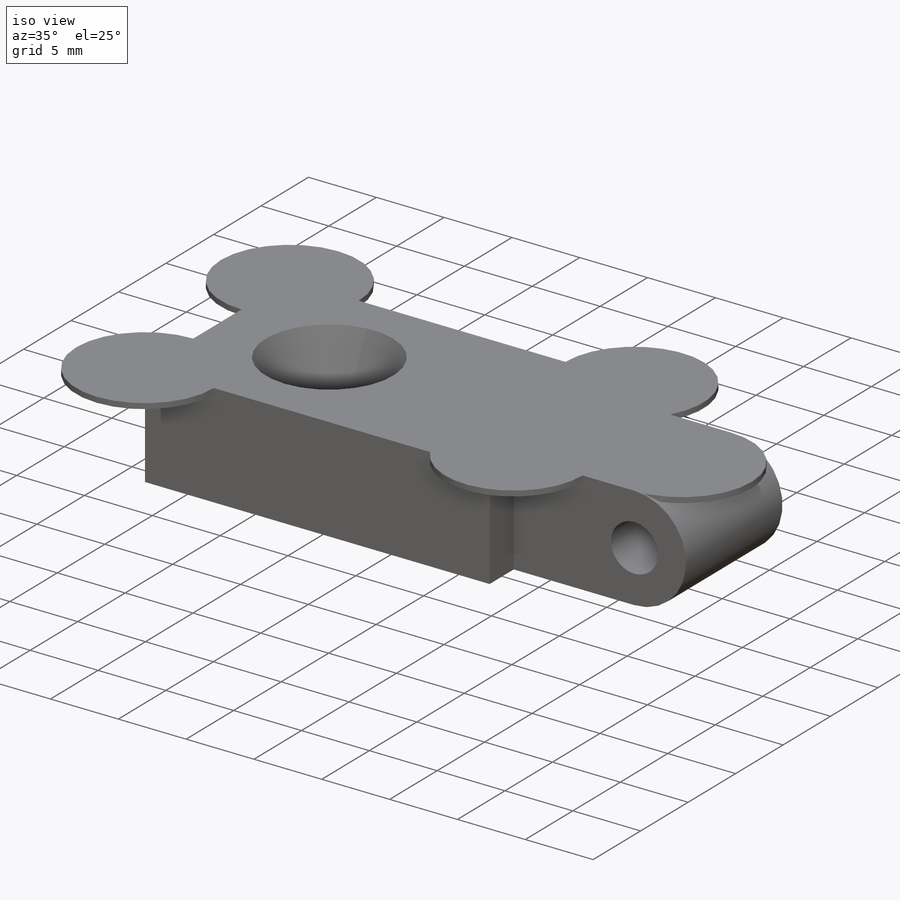
[diagram: iso view]
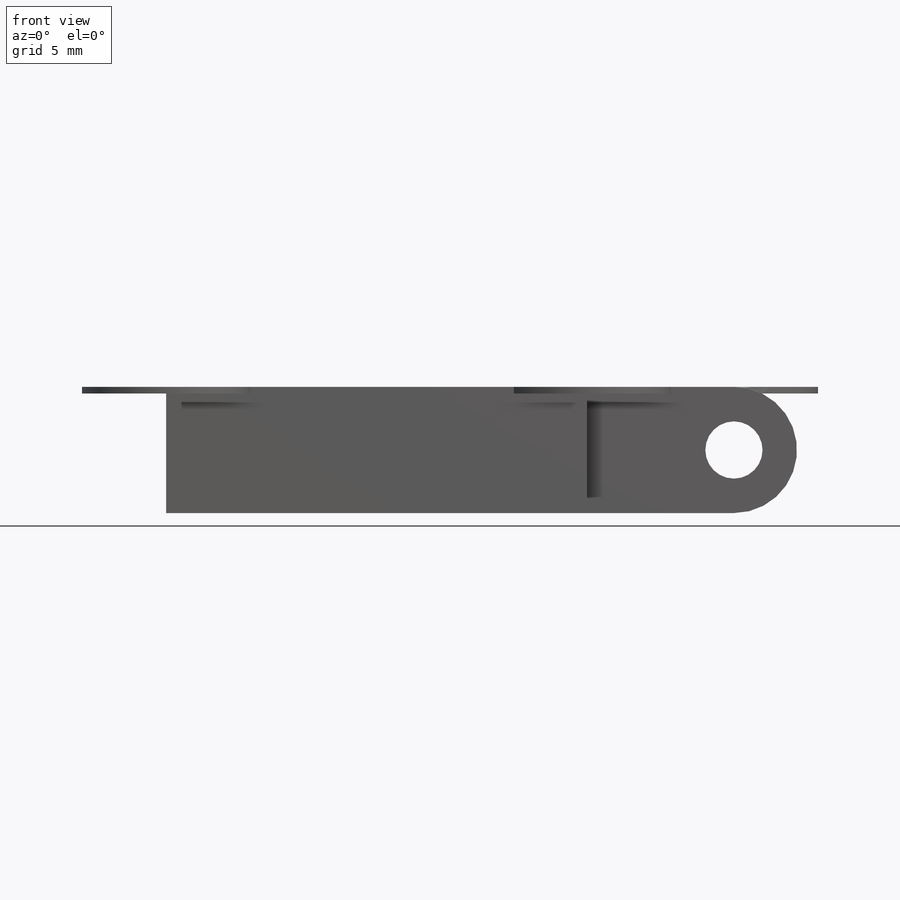
[diagram: front view]
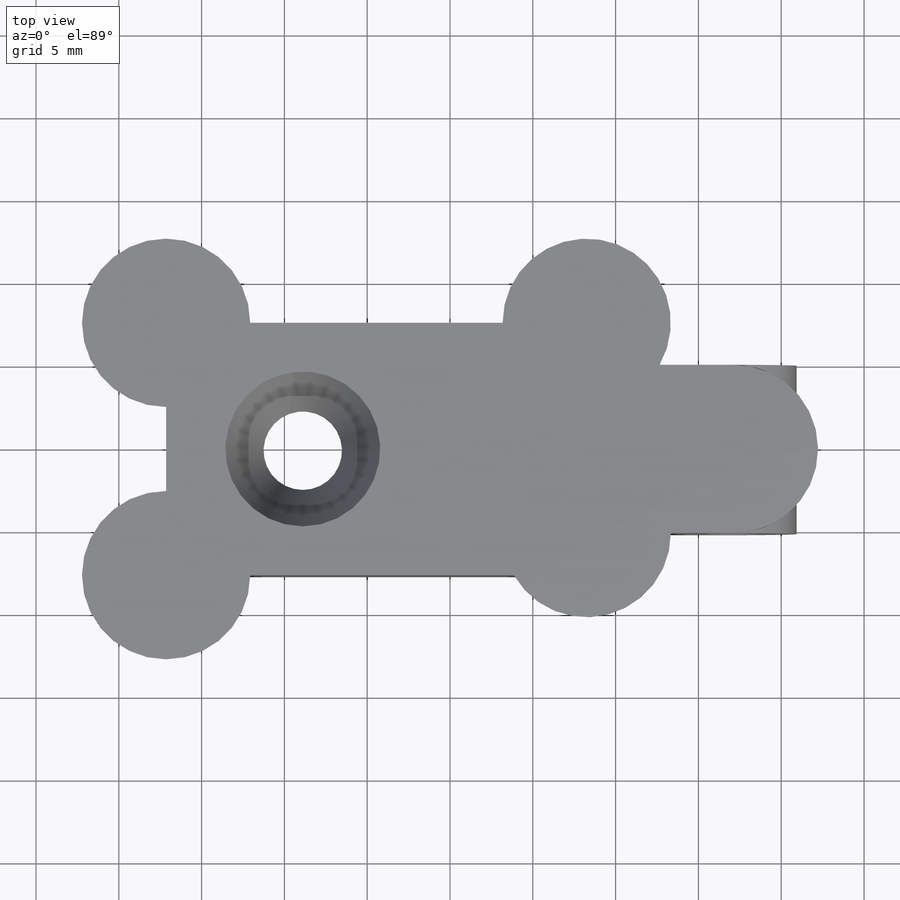
[diagram: top view]
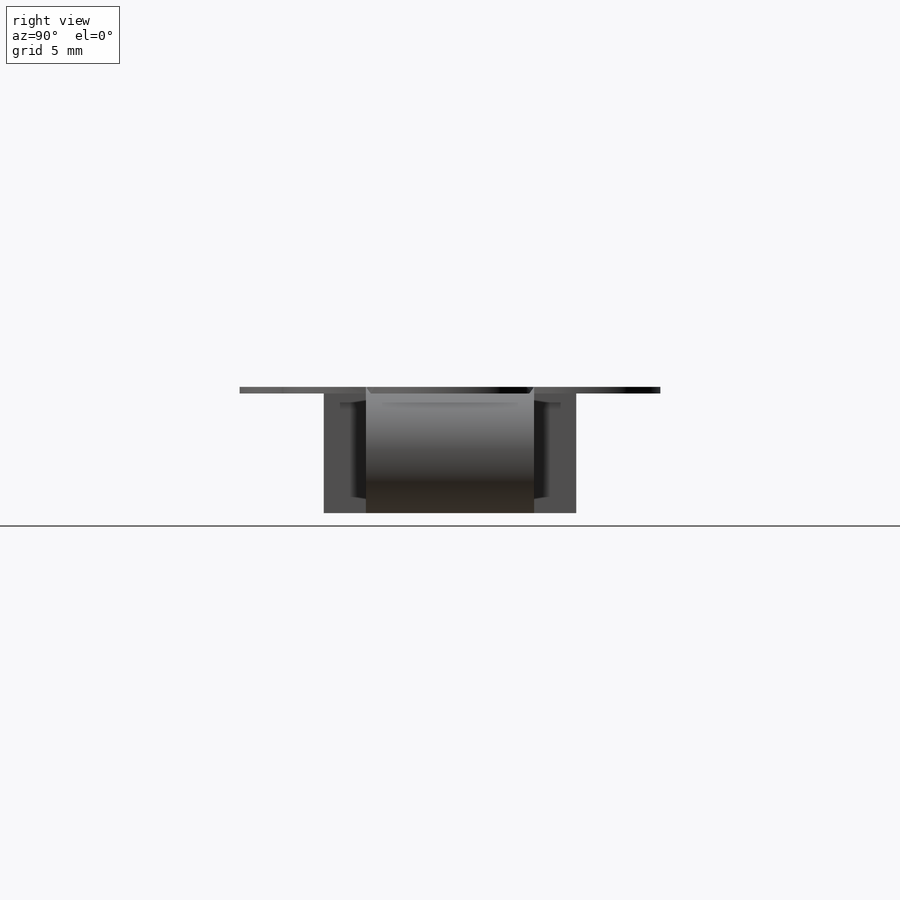
[diagram: right view]
SOLIDWORKS PART (.sldprt)
format: sldprt  version: not decoded by parser v0  size: 435,712 bytes
history: native  units: mm
features: sketch x7, extrude x3, cut_extrude x2, material x1, hole x1 (+13 scaffold rows collapsed)
feature tree (27):
  scaffold x13  (default folders/planes/origin — collapsed)
  material  "Material <not specified>"
  sketch  "Sketch1"  dims[D1=7.62mm D2=34.29mm]
  extrude  "Boss-Extrude1"  Depth=10.16mm
  hole  "#4 Clearance Hole1"  Diameter=3.4544mm Depth=10.16mm
  sketch  "Sketch3"
  sketch  "Sketch2"  dims[hole-wizard template sketch: 60 standard entries collapsed; hole parameters kept: c18.Thru Hole Depth=10.16mm]
  sketch  "Sketch4"  dims[D2=3.81mm D1=8.255mm]
  cut_extrude  "Cut-Extrude1"  [1 undecoded]
  sketch  "Sketch5"  dims[D1=8.255mm]
  cut_extrude  "Cut-Extrude2"  Depth=1.27mm
  sketch  "Sketch6"  dims[D1=2.54mm D2=25.4mm]
  extrude  "Boss-Extrude2"  [1 undecoded]
  sketch  "Sketch7"  dims[D1=10.16mm D2=10.16mm D3=10.16mm D4=10.16mm D5=10.16mm]
  extrude  "PrintTabs"  Depth=0.4mm
decode coverage: 10 of 13 modeling features carry decoded parameters
note: ~ marks probable driven/reference dimensions
note: 2 parameter values undecoded
note: suppression state not decoded; provenance and decode notes live in map.json
